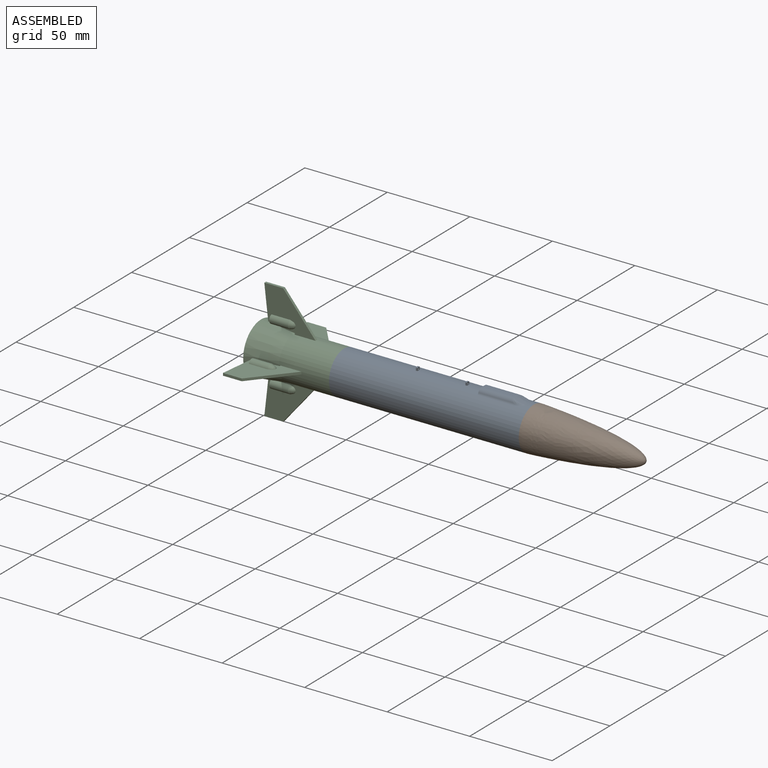
[diagram: assembled view]
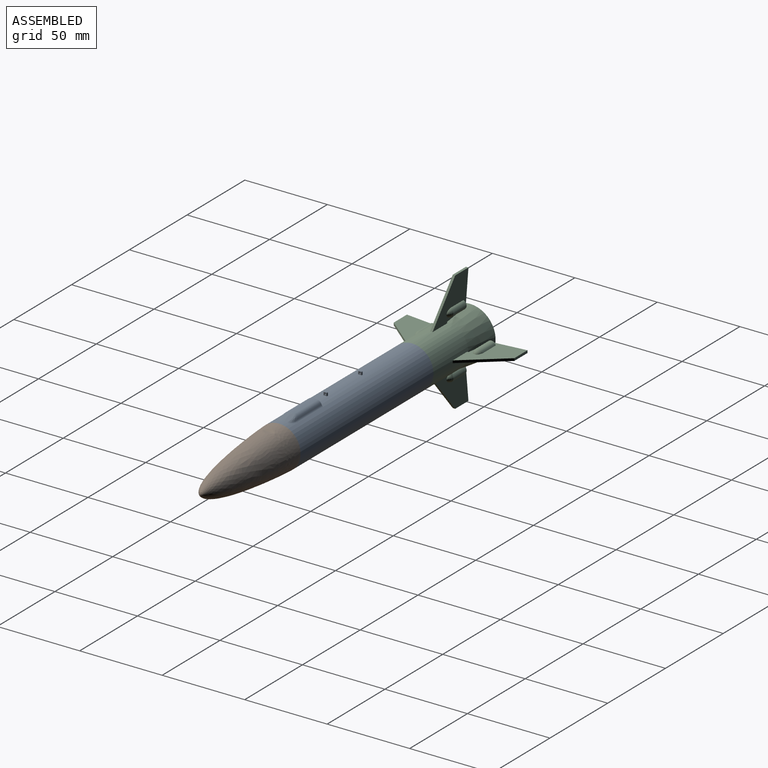
[diagram: assembled view, second angle]
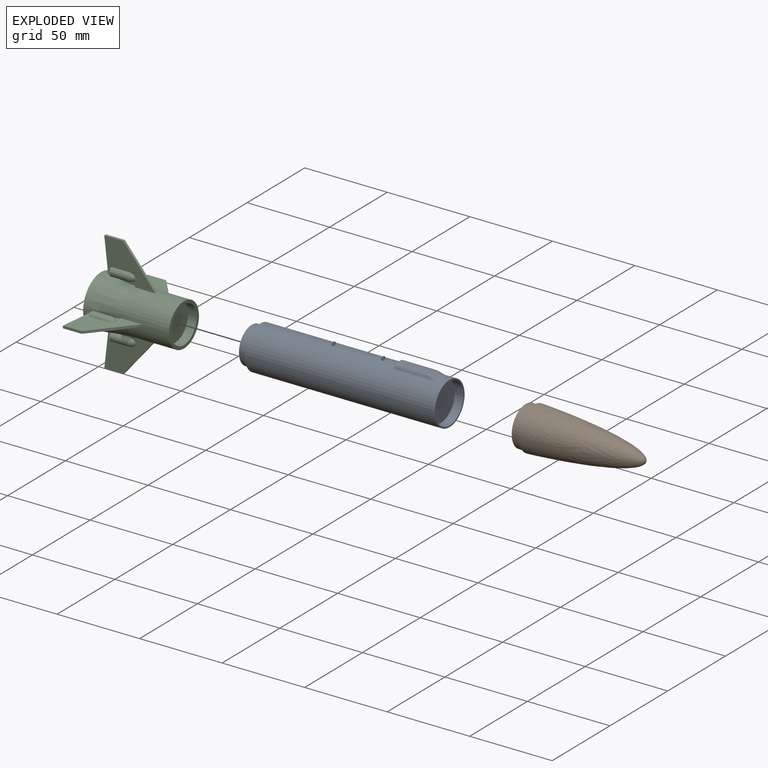
[diagram: exploded view]
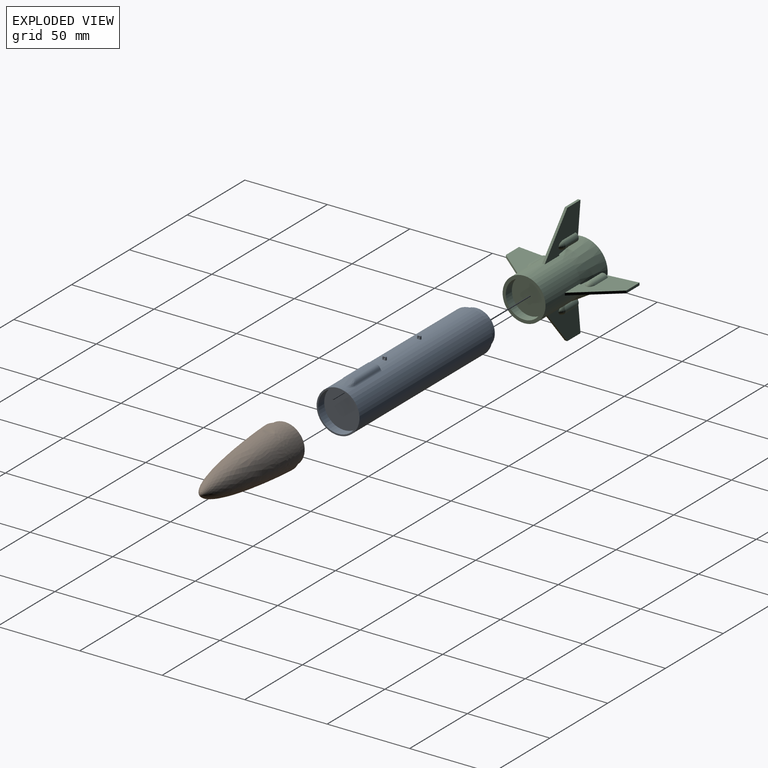
[diagram: exploded view, second angle]
ASSEMBLY  parts=3 mates=2
PART A: 51 faces, bbox 120.2x26x30 mm
  f0: cylinder r=13mm len=115mm, axis (1,0,0), area 8100.5mm2, adj f4,f5,f9,f13,f14,f16,f17,f19
  f1: plane 22x22mm, normal (-1,0,0), area 380.1mm2, adj f6
  f2: plane 24.2x24.2mm, normal (1,0,0), area 460mm2, adj f3
  f3: cylinder r=12.1mm len=24.2mm, axis (1,0,0), area 402.9mm2, adj f2,f4
  f4: plane 26x26mm, normal (1,0,0), area 71mm2, adj f0,f3
  f5: plane 26x26mm, normal (-1,0,0), area 150.8mm2, adj f0,f6
  f6: cylinder r=11mm len=22mm, axis (1,0,0), area 345.6mm2, adj f1,f5
  f7: cone r=13mm half-angle=15.6deg, axis (-1,0,0), area 36.6mm2, adj f15,f16,f18,f20
  f8: cylinder r=15mm len=19.73mm, axis (-1,0,0), area 72.3mm2, adj f9,f11,f12,f18
  f9: plane 10.63x3.14mm, normal (-1,0,0), area 16mm2, adj f0,f8,f11,f12,f13,f17
  f10: cylinder r=13.8mm len=109.23mm, axis (-1,0,0), area 75.1mm2, adj f37,f38,f39,f40
  f11: cylinder r=3mm len=21.52mm, axis (1,0,0), area 67.1mm2, adj f8,f9,f13,f15
  f12: cylinder r=3mm len=21.52mm, axis (1,0,0), area 67.1mm2, adj f8,f9,f17,f20
  f13: cylinder r=2mm len=21.52mm, axis (-1,0,0), area 33.8mm2, adj f0,f9,f11,f14
  f14: bspline ~6.24x3.4mm, area 7.3mm2, adj f0,f13,f15,f16
  f15: bspline ~11.11x6.69mm, area 10.5mm2, adj f7,f11,f14,f18
  f16: torus R=15mm, axis (-1,0,0), area 2.4mm2, adj f0,f7,f14,f19
  f17: cylinder r=2mm len=21.52mm, axis (-1,0,0), area 33.8mm2, adj f0,f9,f12,f19
  f18: torus R=13mm, axis (1,0,0), area 2mm2, adj f7,f8,f15,f20
  f19: bspline ~5.99x3.44mm, area 7.3mm2, adj f0,f16,f17,f20
  f20: bspline ~11.11x6.69mm, area 10.5mm2, adj f7,f12,f18,f19
  f21: plane 1.36x1mm, normal (0,1,0), area 1.4mm2, adj f25,f26,f35,f47,f48,f50
  f22: plane 1.36x1mm, normal (0,-1,0), area 1.4mm2, adj f25,f26,f36,f47,f49,f50
  f23: plane 1.2x1mm, normal (0,0,1), area 1.2mm2, adj f25,f26,f35,f36
  f24: cylinder r=0.5mm len=1mm, axis (-1,0,0), area 3.1mm2, adj f25,f26
  f25: plane 2x1.75mm, normal (1,0,0), area 2.6mm2, adj f21,f22,f23,f24,f35,f36,f50
  f26: plane 2x1.75mm, normal (-1,0,0), area 2.6mm2, adj f21,f22,f23,f24,f35,f36,f47
  f27: plane 1.37x1mm, normal (0,1,0), area 1.4mm2, adj f31,f32,f33,f43,f44,f46
  f28: plane 1.37x1mm, normal (0,-1,0), area 1.4mm2, adj f31,f32,f34,f43,f45,f46
  f29: plane 1.2x1mm, normal (0,0,1), area 1.2mm2, adj f31,f32,f33,f34
  f30: cylinder r=0.5mm len=1mm, axis (-1,0,0), area 3.1mm2, adj f31,f32
  f31: plane 2x1.75mm, normal (1,0,0), area 2.6mm2, adj f27,f28,f29,f30,f33,f34,f46
  f32: plane 2x1.75mm, normal (-1,0,0), area 2.6mm2, adj f27,f28,f29,f30,f33,f34,f43
  f33: cylinder r=0.4mm len=1mm, axis (-1,0,0), area 0.6mm2, adj f27,f29,f31,f32
  f34: cylinder r=0.4mm len=1mm, axis (-1,0,0), area 0.6mm2, adj f28,f29,f31,f32
  f35: cylinder r=0.4mm len=1mm, axis (-1,0,0), area 0.6mm2, adj f21,f23,f25,f26
  f36: cylinder r=0.4mm len=1mm, axis (-1,0,0), area 0.6mm2, adj f22,f23,f25,f26
  f37: cylinder r=5mm len=112.68mm, axis (1,0,0), area 325.5mm2, adj f10,f39,f40,f41
  f38: cylinder r=5mm len=112.68mm, axis (1,0,0), area 325.5mm2, adj f10,f39,f40,f42
  f39: torus R=10.8mm, axis (1,0,0), area 9.5mm2, adj f0,f10,f37,f38,f41,f42
  f40: torus R=10.8mm, axis (-1,0,0), area 9.5mm2, adj f0,f10,f37,f38,f41,f42
  f41: cylinder r=5mm len=113.31mm, axis (1,0,0), area 154.9mm2, adj f0,f37,f39,f40
  f42: cylinder r=5mm len=113.31mm, axis (1,0,0), area 154.9mm2, adj f0,f38,f39,f40
  f43: torus R=13.2mm, axis (1,0,0), area 0.7mm2, adj f0,f27,f28,f32,f44,f45
  f44: cylinder r=0.2mm len=1.4mm, axis (1,0,0), area 0.4mm2, adj f0,f27,f43,f46
  f45: cylinder r=0.2mm len=1.4mm, axis (1,0,0), area 0.4mm2, adj f0,f28,f43,f46
  f46: torus R=13.2mm, axis (1,0,0), area 0.7mm2, adj f0,f27,f28,f31,f44,f45
  f47: torus R=13.2mm, axis (1,0,0), area 0.7mm2, adj f0,f21,f22,f26,f48,f49
  f48: cylinder r=0.2mm len=1.4mm, axis (1,0,0), area 0.4mm2, adj f0,f21,f47,f50
  f49: cylinder r=0.2mm len=1.4mm, axis (1,0,0), area 0.4mm2, adj f0,f22,f47,f50
  f50: torus R=13.2mm, axis (1,0,0), area 0.7mm2, adj f0,f21,f22,f25,f48,f49
PART B: 6 faces, bbox 73x26x26 mm
  f0: plane 26x26mm, normal (1,0,0), area 78.5mm2, adj f1,f3
  f1: revolved ~68x26mm, area 4095.3mm2, adj f0
  f2: plane 24x24mm, normal (1,0,0), area 72.3mm2, adj f3,f5
  f3: cylinder r=12mm len=24mm, axis (1,0,0), area 377mm2, adj f0,f2
  f4: plane 6.72x6.72mm, normal (1,0,0), area 35.5mm2, adj f5
  f5: cone r=11mm half-angle=9.6deg, axis (1,0,0), area 2059.3mm2, adj f2,f4
PART C: 82 faces, bbox 50.4x73.1x73.1 mm
  f0: plane 1.98x1.5mm, normal (-0.14,-0.99,0), area 3mm2, adj f1,f2,f14,f72
  f1: plane 31.1x23.6mm, normal (0,0,-1), area 367.4mm2, adj f0,f12,f13,f14,f15,f16,f35,f72
  f2: plane 31.1x23.6mm, normal (0,0,1), area 367.4mm2, adj f0,f12,f13,f14,f15,f16,f35,f72
  f3: plane 1.98x1.5mm, normal (-0.14,0,0.99), area 3mm2, adj f4,f5,f19,f62
  f4: plane 31.1x23.6mm, normal (0,-1,0), area 367.4mm2, adj f3,f17,f18,f19,f20,f21,f35,f62
  f5: plane 31.1x23.6mm, normal (0,1,0), area 367.4mm2, adj f3,f17,f18,f19,f20,f21,f35,f62
  f6: plane 1.98x1.5mm, normal (-0.14,0.99,0), area 3mm2, adj f7,f8,f24,f52
  f7: plane 31.1x23.6mm, normal (0,0,1), area 367.4mm2, adj f6,f22,f23,f24,f25,f26,f35,f52
  f8: plane 31.1x23.6mm, normal (0,0,-1), area 367.4mm2, adj f6,f22,f23,f24,f25,f26,f35,f52
  f9: plane 31.1x23.6mm, normal (0,-1,0), area 367.4mm2, adj f11,f35,f37,f38,f39,f40,f41,f46
  f10: plane 31.1x23.6mm, normal (0,1,0), area 367.4mm2, adj f11,f35,f37,f38,f39,f40,f41,f42
  f11: plane 1.98x1.5mm, normal (-0.14,0,-0.99), area 3mm2, adj f9,f10,f39,f46
  f12: plane 23.58x19.68mm, normal (0.77,0.64,0), area 46mm2, adj f1,f2,f13,f35
  f13: plane 11.4x1.5mm, normal (0,1,0), area 17.1mm2, adj f1,f2,f12,f14
  f14: plane 20.5x2.34mm, normal (-0.99,-0.11,0), area 30.9mm2, adj f0,f1,f2,f13
  f15: plane 9.97x1.5mm, normal (-0.14,-0.99,0), area 14.3mm2, adj f1,f2,f16,f73
  f16: plane 1.5x0.82mm, normal (-1,0,0), area 1.2mm2, adj f1,f2,f15,f35
  f17: plane 23.56x19.65mm, normal (0.77,0,-0.64), area 46mm2, adj f4,f5,f18,f35
  f18: plane 11.4x1.5mm, normal (0,0,-1), area 17.1mm2, adj f4,f5,f17,f19
  f19: plane 20.5x2.34mm, normal (-0.99,0,0.11), area 30.9mm2, adj f3,f4,f5,f18
  f20: plane 9.97x1.5mm, normal (-0.14,0,0.99), area 14.3mm2, adj f4,f5,f21,f63
  f21: plane 1.5x0.82mm, normal (-1,0,0), area 1.2mm2, adj f4,f5,f20,f35
  f22: plane 23.58x19.68mm, normal (0.77,-0.64,0), area 46mm2, adj f7,f8,f23,f35
  f23: plane 11.4x1.5mm, normal (0,-1,0), area 17.1mm2, adj f7,f8,f22,f24
  f24: plane 20.5x2.34mm, normal (-0.99,0.11,0), area 30.9mm2, adj f6,f7,f8,f23
  f25: plane 9.97x1.5mm, normal (-0.14,0.99,0), area 14.3mm2, adj f7,f8,f26,f53
  f26: plane 1.5x0.82mm, normal (-1,0,0), area 1.2mm2, adj f7,f8,f25,f35
  f27: plane 30.91x30.91mm, normal (-1,0,0), area 181.7mm2, adj f28,f36
  f28: cone r=13.46mm half-angle=7deg, axis (-1,0,0), area 242.5mm2, adj f27,f29
  f29: cone r=13.1mm half-angle=40deg, axis (-1,0,0), area 826.4mm2, adj f28,f30
  f30: cylinder r=1.6mm len=22.84mm, axis (1,0,0), area 229.6mm2, adj f29,f31
  f31: cone r=0mm half-angle=36.4deg, axis (-1,0,0), area 13.6mm2, adj f30
  f32: plane 22.2x22.2mm, normal (1,0,0), area 387.1mm2, adj f33
  f33: cylinder r=11.1mm len=22.2mm, axis (1,0,0), area 369.6mm2, adj f32,f34
  f34: plane 26x26mm, normal (1,0,0), area 143.9mm2, adj f33,f35
  f35: cylinder r=13mm len=30.3mm, axis (1,0,0), area 2399.4mm2, adj f1,f2,f4,f5,f7,f8,f9,f10
  f36: cone r=15.46mm half-angle=7deg, axis (-1,0,0), area 1801.4mm2, adj f27,f35
  f37: plane 23.58x19.68mm, normal (0.77,0,0.64), area 46mm2, adj f9,f10,f35,f38
  f38: plane 11.4x1.5mm, normal (0,0,1), area 17.1mm2, adj f9,f10,f37,f39
  f39: plane 20.5x2.34mm, normal (-0.99,0,-0.11), area 30.9mm2, adj f9,f10,f11,f38
  f40: plane 9.97x1.5mm, normal (-0.14,0,-0.99), area 14.3mm2, adj f9,f10,f41,f47
  f41: plane 1.5x0.82mm, normal (-1,0,0), area 1.2mm2, adj f9,f10,f35,f40
  f42: cone r=2.24mm half-angle=18.1deg, axis (-1,0,0), area 9mm2, adj f10,f43,f47
  f43: cone r=1.86mm half-angle=23.4deg, axis (-1,0,0), area 4.8mm2, adj f10,f42,f44
  f44: cone r=1.32mm half-angle=42.9deg, axis (-1,0,0), area 2.7mm2, adj f10,f43,f45
  f45: cone r=0.67mm half-angle=56deg, axis (-1,0,0), area 1.1mm2, adj f10,f44
  f46: plane 5.39x5.28mm, normal (-1,0,0), area 15.8mm2, adj f9,f10,f11,f47
  f47: cylinder r=2.69mm len=11.43mm, axis (-1,0,0), area 165.9mm2, adj f9,f10,f40,f42,f46,f48
  f48: cone r=2.24mm half-angle=18.1deg, axis (-1,0,0), area 9mm2, adj f9,f47,f49
  f49: cone r=1.86mm half-angle=23.4deg, axis (-1,0,0), area 4.8mm2, adj f9,f48,f50
  f50: cone r=1.32mm half-angle=42.9deg, axis (-1,0,0), area 2.7mm2, adj f9,f49,f51
  f51: cone r=0.67mm half-angle=56deg, axis (-1,0,0), area 1.1mm2, adj f9,f50
  f52: plane 5.39x5.28mm, normal (-1,0,0), area 15.8mm2, adj f6,f7,f8,f53
  f53: cylinder r=2.69mm len=11.43mm, axis (-1,0,0), area 165.9mm2, adj f7,f8,f25,f52,f54,f58
  f54: cone r=2.24mm half-angle=18.1deg, axis (-1,0,0), area 9mm2, adj f7,f53,f55
  f55: cone r=1.86mm half-angle=23.4deg, axis (-1,0,0), area 4.8mm2, adj f7,f54,f56
  f56: cone r=1.32mm half-angle=42.9deg, axis (-1,0,0), area 2.7mm2, adj f7,f55,f57
  f57: cone r=0.67mm half-angle=56deg, axis (-1,0,0), area 1.1mm2, adj f7,f56
  f58: cone r=2.24mm half-angle=18.1deg, axis (-1,0,0), area 9mm2, adj f8,f53,f59
  f59: cone r=1.86mm half-angle=23.4deg, axis (-1,0,0), area 4.8mm2, adj f8,f58,f60
  f60: cone r=1.32mm half-angle=42.9deg, axis (-1,0,0), area 2.7mm2, adj f8,f59,f61
  f61: cone r=0.67mm half-angle=56deg, axis (-1,0,0), area 1.1mm2, adj f8,f60
  f62: plane 5.39x5.28mm, normal (-1,0,0), area 15.8mm2, adj f3,f4,f5,f63
  f63: cylinder r=2.69mm len=11.43mm, axis (-1,0,0), area 165.9mm2, adj f4,f5,f20,f62,f64,f68
  f64: cone r=2.24mm half-angle=18.1deg, axis (-1,0,0), area 9mm2, adj f4,f63,f65
  f65: cone r=1.86mm half-angle=23.4deg, axis (-1,0,0), area 4.8mm2, adj f4,f64,f66
  f66: cone r=1.32mm half-angle=42.9deg, axis (-1,0,0), area 2.7mm2, adj f4,f65,f67
  f67: cone r=0.67mm half-angle=56deg, axis (-1,0,0), area 1.1mm2, adj f4,f66
  f68: cone r=2.24mm half-angle=18.1deg, axis (-1,0,0), area 9mm2, adj f5,f63,f69
  f69: cone r=1.86mm half-angle=23.4deg, axis (-1,0,0), area 4.8mm2, adj f5,f68,f70
  f70: cone r=1.32mm half-angle=42.9deg, axis (-1,0,0), area 2.7mm2, adj f5,f69,f71
  f71: cone r=0.67mm half-angle=56deg, axis (-1,0,0), area 1.1mm2, adj f5,f70
  f72: plane 5.39x5.28mm, normal (-1,0,0), area 15.8mm2, adj f0,f1,f2,f73
  f73: cylinder r=2.69mm len=11.43mm, axis (-1,0,0), area 165.9mm2, adj f1,f2,f15,f72,f74,f78
  f74: cone r=2.24mm half-angle=18.1deg, axis (-1,0,0), area 9mm2, adj f1,f73,f75
  f75: cone r=1.86mm half-angle=23.4deg, axis (-1,0,0), area 4.8mm2, adj f1,f74,f76
  f76: cone r=1.32mm half-angle=42.9deg, axis (-1,0,0), area 2.7mm2, adj f1,f75,f77
  f77: cone r=0.67mm half-angle=56deg, axis (-1,0,0), area 1.1mm2, adj f1,f76
  f78: cone r=2.24mm half-angle=18.1deg, axis (-1,0,0), area 9mm2, adj f2,f73,f79
  f79: cone r=1.86mm half-angle=23.4deg, axis (-1,0,0), area 4.8mm2, adj f2,f78,f80
  f80: cone r=1.32mm half-angle=42.9deg, axis (-1,0,0), area 2.7mm2, adj f2,f79,f81
  f81: cone r=0.67mm half-angle=56deg, axis (-1,0,0), area 1.1mm2, adj f2,f80
PLACE A t=(52.46,-6.34,32.43)mm
PLACE B rot(axis=(0,1,0),180deg) t=(118.27,-6.34,32.43)mm
PLACE C t=(-24.7,-6.34,32.43)mm
MATE fastened B.f3 <-> A.f0  axis (-1,0,0) through (118.27,-6.34,32.43)mm
MATE fastened A.f0 <-> C.f28  axis (-1,0,0) through (3.27,-6.34,32.43)mm
